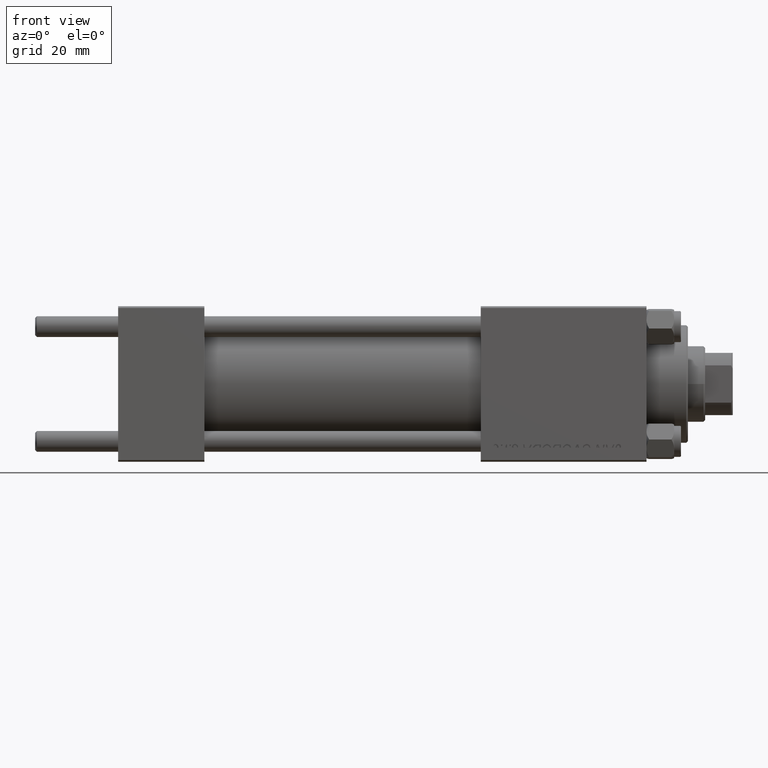
[diagram: clean part render]
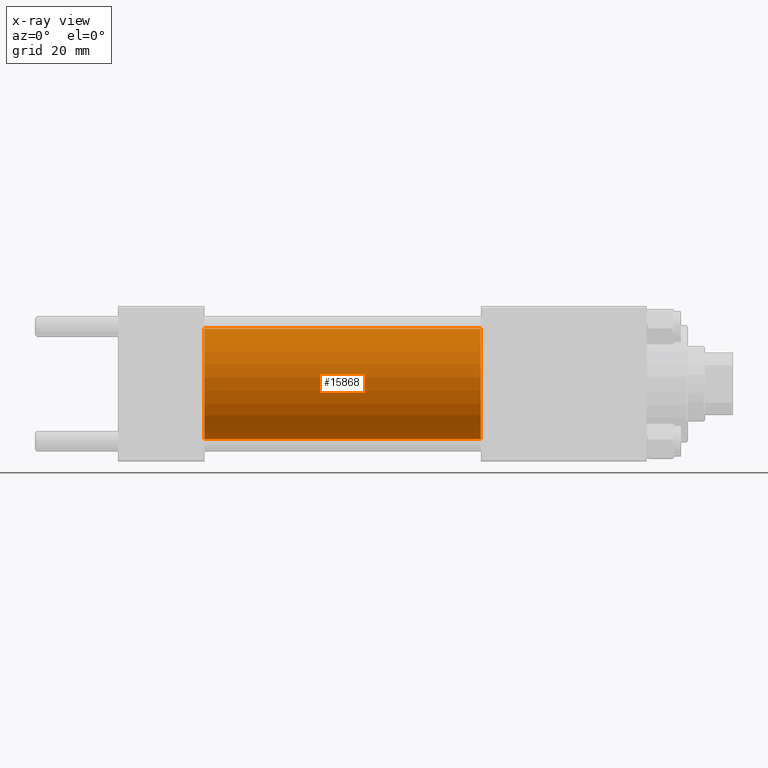
[diagram: x-ray — body ghosted, one internal face saturated and labeled with its STEP entity id]
A machine part, front view, then the same camera in x-ray: the body is ghosted and one INTERNAL B-rep face — a face not visible from any outside direction — is saturated and labeled: STEP entity #15868.
In plain terms, the highlighted cylindrical surface (partial cylindrical patch) has radius 16 mm, axis along (-1, -0, -0).
Its self-contained STEP definition (entity closure, byte-faithful):
#1043 = ORIENTED_EDGE ( 'NONE', *, *, #8301, .T. ) ;
#1651 = EDGE_LOOP ( 'NONE', ( #1043, #6356, #24283, #24695 ) ) ;
#1933 = DIRECTION ( 'NONE',  ( 1.000000000000000000, 0.000000000000000000, 0.000000000000000000 ) ) ;
#1958 = CARTESIAN_POINT ( 'NONE',  ( 105.0000000000000142, 1.959434878635765131E-15, -16.00000000000000000 ) ) ;
#3920 = CARTESIAN_POINT ( 'NONE',  ( 105.0000000000000142, 0.000000000000000000, 16.00000000000000000 ) ) ;
#6356 = ORIENTED_EDGE ( 'NONE', *, *, #22161, .T. ) ;
#7471 = DIRECTION ( 'NONE',  ( 1.000000000000000000, 0.000000000000000000, 0.000000000000000000 ) ) ;
#8301 = EDGE_CURVE ( 'NONE', #34701, #49656, #26469, .T. ) ;
#11141 = AXIS2_PLACEMENT_3D ( 'NONE', #20233, #11663, #47320 ) ;
#11663 = DIRECTION ( 'NONE',  ( -1.000000000000000000, -0.000000000000000000, -0.000000000000000000 ) ) ;
#12643 = LINE ( 'NONE', #32135, #20174 ) ;
#13003 = DIRECTION ( 'NONE',  ( -1.000000000000000000, -0.000000000000000000, -0.000000000000000000 ) ) ;
#13029 = CIRCLE ( 'NONE', #21924, 16.00000000000000000 ) ;
#14939 = VERTEX_POINT ( 'NONE', #25483 ) ;
#15868 = ADVANCED_FACE ( 'NONE', ( #46571 ), #42769, .F. ) ;
#16789 = LINE ( 'NONE', #24392, #28419 ) ;
#17088 = DIRECTION ( 'NONE',  ( 0.000000000000000000, 0.000000000000000000, -1.000000000000000000 ) ) ;
#20174 = VECTOR ( 'NONE', #27823, 1000.000000000000000 ) ;
#20233 = CARTESIAN_POINT ( 'NONE',  ( 105.0000000000000142, 0.000000000000000000, 0.000000000000000000 ) ) ;
#21924 = AXIS2_PLACEMENT_3D ( 'NONE', #23129, #7471, #42862 ) ;
#22161 = EDGE_CURVE ( 'NONE', #49656, #46141, #12643, .T. ) ;
#23129 = CARTESIAN_POINT ( 'NONE',  ( 25.00000000000000000, 0.000000000000000000, 0.000000000000000000 ) ) ;
#24283 = ORIENTED_EDGE ( 'NONE', *, *, #24903, .F. ) ;
#24392 = CARTESIAN_POINT ( 'NONE',  ( 105.0000000000000142, 0.000000000000000000, 16.00000000000000000 ) ) ;
#24695 = ORIENTED_EDGE ( 'NONE', *, *, #25843, .F. ) ;
#24903 = EDGE_CURVE ( 'NONE', #14939, #46141, #13029, .T. ) ;
#25483 = CARTESIAN_POINT ( 'NONE',  ( 25.00000000000000000, 0.000000000000000000, 16.00000000000000000 ) ) ;
#25843 = EDGE_CURVE ( 'NONE', #34701, #14939, #16789, .T. ) ;
#26469 = CIRCLE ( 'NONE', #38589, 16.00000000000000000 ) ;
#27823 = DIRECTION ( 'NONE',  ( -1.000000000000000000, -0.000000000000000000, -0.000000000000000000 ) ) ;
#28419 = VECTOR ( 'NONE', #13003, 1000.000000000000000 ) ;
#32135 = CARTESIAN_POINT ( 'NONE',  ( 105.0000000000000142, 1.959434878635765131E-15, -16.00000000000000000 ) ) ;
#34701 = VERTEX_POINT ( 'NONE', #3920 ) ;
#38589 = AXIS2_PLACEMENT_3D ( 'NONE', #43924, #1933, #17088 ) ;
#42769 = CYLINDRICAL_SURFACE ( 'NONE', #11141, 16.00000000000000000 ) ;
#42862 = DIRECTION ( 'NONE',  ( 0.000000000000000000, 0.000000000000000000, -1.000000000000000000 ) ) ;
#43424 = CARTESIAN_POINT ( 'NONE',  ( 25.00000000000000000, 1.959434878635765131E-15, -16.00000000000000000 ) ) ;
#43924 = CARTESIAN_POINT ( 'NONE',  ( 105.0000000000000142, 0.000000000000000000, 0.000000000000000000 ) ) ;
#46141 = VERTEX_POINT ( 'NONE', #43424 ) ;
#46571 = FACE_OUTER_BOUND ( 'NONE', #1651, .T. ) ;
#47320 = DIRECTION ( 'NONE',  ( 0.000000000000000000, 0.000000000000000000, 1.000000000000000000 ) ) ;
#49656 = VERTEX_POINT ( 'NONE', #1958 ) ;